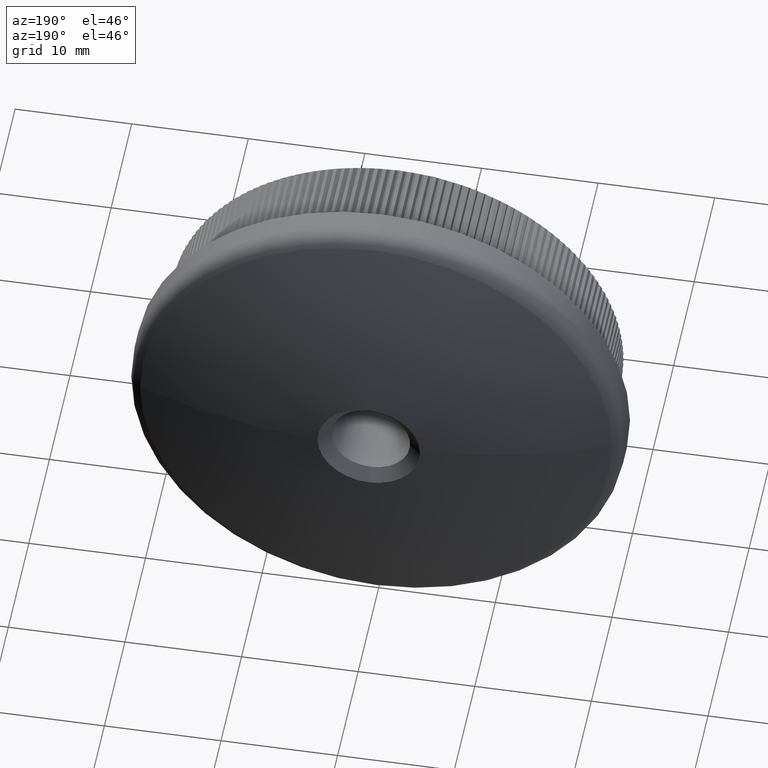
[diagram: clean part render]
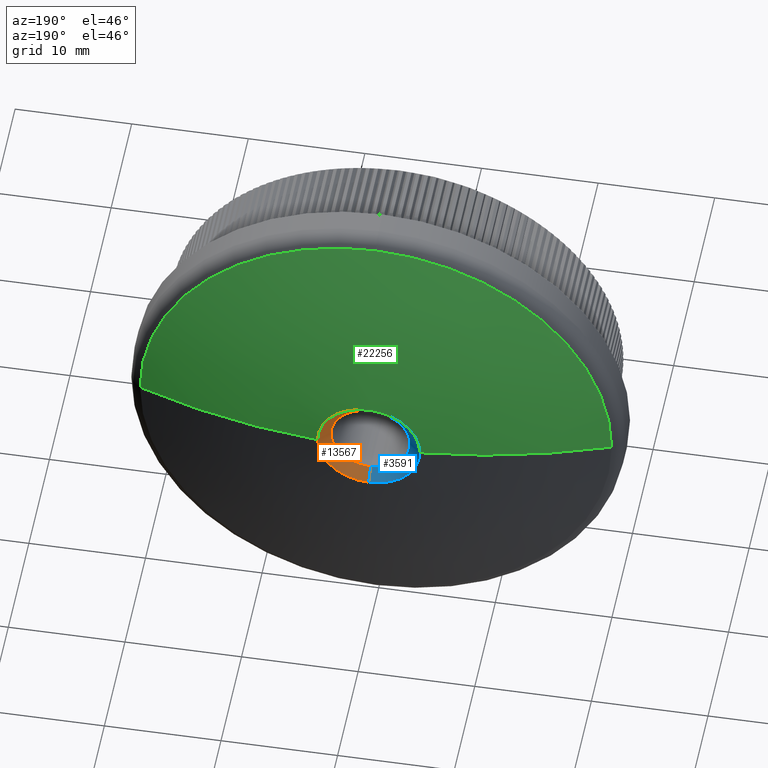
[diagram: same view with three faces highlighted in distinct colors, each labeled with its STEP entity id]
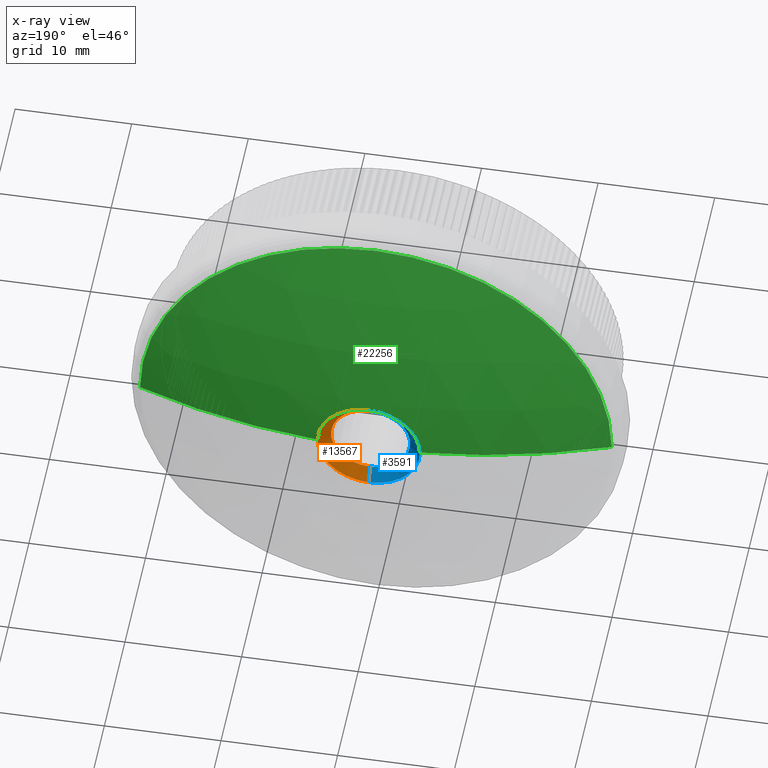
[diagram: x-ray of the same camera — body ghosted, the three highlighted faces saturated]
A machine part, auxiliary view with three faces highlighted in distinct colors.
The next image is the same camera in x-ray (body ghosted, the three faces saturated) — at least one of them is partly hidden behind the body in this view.
Their STEP definitions:

[orange] entity #13567 — the highlighted conical surface has half-angle 48.35 deg.
#794 = CARTESIAN_POINT ( 'NONE',  ( 0.0000000000000000000, 14.83418710009236300, 4.389361584043635700 ) ) ;
#1027 = EDGE_CURVE ( 'NONE', #30300, #27016, #25274, .T. ) ;
#1059 = DIRECTION ( 'NONE',  ( 0.0000000000000000000, 0.0000000000000000000, 1.000000000000000000 ) ) ;
#1078 = ORIENTED_EDGE ( 'NONE', *, *, #11373, .F. ) ;
#1362 = ORIENTED_EDGE ( 'NONE', *, *, #6208, .F. ) ;
#1456 = DIRECTION ( 'NONE',  ( 0.0000000000000000000, 0.0000000000000000000, -1.000000000000000000 ) ) ;
#2611 = ORIENTED_EDGE ( 'NONE', *, *, #7115, .F. ) ;
#3820 = AXIS2_PLACEMENT_3D ( 'NONE', #13050, #10595, #1059 ) ;
#4102 = DIRECTION ( 'NONE',  ( 0.0000000000000000000, 0.0000000000000000000, -1.000000000000000000 ) ) ;
#4657 = ORIENTED_EDGE ( 'NONE', *, *, #1027, .F. ) ;
#4706 = LINE ( 'NONE', #23423, #14696 ) ;
#6208 = EDGE_CURVE ( 'NONE', #9040, #26102, #29219, .T. ) ;
#6854 = EDGE_CURVE ( 'NONE', #30300, #26102, #4706, .T. ) ;
#7115 = EDGE_CURVE ( 'NONE', #15063, #9040, #12084, .T. ) ;
#7617 = CARTESIAN_POINT ( 'NONE',  ( 4.389361584043620600, 14.83418710009236300, 0.0000000000000000000 ) ) ;
#8033 = ORIENTED_EDGE ( 'NONE', *, *, #6854, .T. ) ;
#8251 = DIRECTION ( 'NONE',  ( 0.0000000000000000000, 0.0000000000000000000, 1.000000000000000000 ) ) ;
#8457 = DIRECTION ( 'NONE',  ( -0.0000000000000000000, -1.000000000000000000, -0.0000000000000000000 ) ) ;
#9040 = VERTEX_POINT ( 'NONE', #7617 ) ;
#9084 = EDGE_LOOP ( 'NONE', ( #1078, #4657, #8033, #1362, #2611 ) ) ;
#10595 = DIRECTION ( 'NONE',  ( 0.0000000000000000000, 1.000000000000000000, 0.0000000000000000000 ) ) ;
#11373 = EDGE_CURVE ( 'NONE', #27016, #15063, #25674, .T. ) ;
#12084 = CIRCLE ( 'NONE', #28764, 4.389361584043620600 ) ;
#12991 = DIRECTION ( 'NONE',  ( 0.0000000000000000000, 1.000000000000000000, 0.0000000000000000000 ) ) ;
#13050 = CARTESIAN_POINT ( 'NONE',  ( 0.0000000000000000000, 13.95425291678296300, 0.0000000000000000000 ) ) ;
#13295 = CARTESIAN_POINT ( 'NONE',  ( 0.0000000000000000000, 14.83418710009236300, 0.0000000000000000000 ) ) ;
#13567 = ADVANCED_FACE ( 'NONE', ( #20353 ), #23373, .F. ) ;
#14696 = VECTOR ( 'NONE', #30533, 1000.000000000000100 ) ;
#15063 = VERTEX_POINT ( 'NONE', #24517 ) ;
#15661 = CARTESIAN_POINT ( 'NONE',  ( 4.163799117100995600E-016, 13.95425291678296300, -3.399999999999995500 ) ) ;
#15905 = AXIS2_PLACEMENT_3D ( 'NONE', #17439, #12991, #8251 ) ;
#17439 = CARTESIAN_POINT ( 'NONE',  ( 0.0000000000000000000, 13.95425291678296300, 0.0000000000000000000 ) ) ;
#19341 = VECTOR ( 'NONE', #22883, 1000.000000000000100 ) ;
#20217 = CARTESIAN_POINT ( 'NONE',  ( 0.0000000000000000000, 14.83418710009236300, 0.0000000000000000000 ) ) ;
#20353 = FACE_OUTER_BOUND ( 'NONE', #9084, .T. ) ;
#20973 = AXIS2_PLACEMENT_3D ( 'NONE', #20217, #24809, #1456 ) ;
#21195 = CARTESIAN_POINT ( 'NONE',  ( 4.163799117100995600E-016, 13.95425291678296300, 3.399999999999995500 ) ) ;
#21952 = CARTESIAN_POINT ( 'NONE',  ( 0.0000000000000000000, 13.95425291678296300, -3.399999999999995500 ) ) ;
#22883 = DIRECTION ( 'NONE',  ( 9.150819930463708100E-017, 0.6645754650830519900, -0.7472211528119671000 ) ) ;
#23373 = CONICAL_SURFACE ( 'NONE', #15905, 3.399999999999995500, 0.8438708040748624800 ) ;
#23423 = CARTESIAN_POINT ( 'NONE',  ( 0.0000000000000000000, 13.95425291678296300, 3.399999999999995500 ) ) ;
#24517 = CARTESIAN_POINT ( 'NONE',  ( 5.375417614199396000E-016, 14.83418710009236300, -4.389361584043635700 ) ) ;
#24809 = DIRECTION ( 'NONE',  ( -0.0000000000000000000, -1.000000000000000000, -0.0000000000000000000 ) ) ;
#25274 = CIRCLE ( 'NONE', #3820, 3.399999999999995500 ) ;
#25674 = LINE ( 'NONE', #15661, #19341 ) ;
#26102 = VERTEX_POINT ( 'NONE', #794 ) ;
#27016 = VERTEX_POINT ( 'NONE', #21952 ) ;
#28764 = AXIS2_PLACEMENT_3D ( 'NONE', #13295, #8457, #4102 ) ;
#29219 = CIRCLE ( 'NONE', #20973, 4.389361584043620600 ) ;
#30300 = VERTEX_POINT ( 'NONE', #21195 ) ;
#30533 = DIRECTION ( 'NONE',  ( 0.0000000000000000000, 0.6645754650830519900, 0.7472211528119671000 ) ) ;

[blue] entity #3591 — the highlighted conical surface has half-angle 48.35 deg.
#794 = CARTESIAN_POINT ( 'NONE',  ( 0.0000000000000000000, 14.83418710009236300, 4.389361584043635700 ) ) ;
#1680 = ORIENTED_EDGE ( 'NONE', *, *, #23419, .F. ) ;
#3591 = ADVANCED_FACE ( 'NONE', ( #7002 ), #26296, .F. ) ;
#4706 = LINE ( 'NONE', #23423, #14696 ) ;
#4857 = AXIS2_PLACEMENT_3D ( 'NONE', #30713, #16694, #21402 ) ;
#5191 = DIRECTION ( 'NONE',  ( 0.0000000000000000000, 0.0000000000000000000, -1.000000000000000000 ) ) ;
#6130 = AXIS2_PLACEMENT_3D ( 'NONE', #7834, #12389, #19656 ) ;
#6854 = EDGE_CURVE ( 'NONE', #30300, #26102, #4706, .T. ) ;
#7002 = FACE_OUTER_BOUND ( 'NONE', #19502, .T. ) ;
#7834 = CARTESIAN_POINT ( 'NONE',  ( 0.0000000000000000000, 13.95425291678296300, 0.0000000000000000000 ) ) ;
#8711 = CARTESIAN_POINT ( 'NONE',  ( 0.0000000000000000000, 14.83418710009236300, 0.0000000000000000000 ) ) ;
#9753 = EDGE_CURVE ( 'NONE', #26102, #15568, #28712, .T. ) ;
#10065 = DIRECTION ( 'NONE',  ( -0.0000000000000000000, -1.000000000000000000, -0.0000000000000000000 ) ) ;
#10140 = ORIENTED_EDGE ( 'NONE', *, *, #6854, .F. ) ;
#10250 = ORIENTED_EDGE ( 'NONE', *, *, #11373, .T. ) ;
#10756 = CARTESIAN_POINT ( 'NONE',  ( -4.389361584043620600, 14.83418710009236300, 1.506971330829536000E-015 ) ) ;
#11373 = EDGE_CURVE ( 'NONE', #27016, #15063, #25674, .T. ) ;
#11689 = AXIS2_PLACEMENT_3D ( 'NONE', #15001, #10065, #5191 ) ;
#12389 = DIRECTION ( 'NONE',  ( 0.0000000000000000000, 1.000000000000000000, 0.0000000000000000000 ) ) ;
#13093 = CIRCLE ( 'NONE', #11689, 4.389361584043620600 ) ;
#13909 = CIRCLE ( 'NONE', #6130, 3.399999999999995500 ) ;
#14696 = VECTOR ( 'NONE', #30533, 1000.000000000000100 ) ;
#15001 = CARTESIAN_POINT ( 'NONE',  ( 0.0000000000000000000, 14.83418710009236300, 0.0000000000000000000 ) ) ;
#15063 = VERTEX_POINT ( 'NONE', #24517 ) ;
#15568 = VERTEX_POINT ( 'NONE', #10756 ) ;
#15661 = CARTESIAN_POINT ( 'NONE',  ( 4.163799117100995600E-016, 13.95425291678296300, -3.399999999999995500 ) ) ;
#15724 = DIRECTION ( 'NONE',  ( -0.0000000000000000000, -1.000000000000000000, -0.0000000000000000000 ) ) ;
#16694 = DIRECTION ( 'NONE',  ( 0.0000000000000000000, 1.000000000000000000, 0.0000000000000000000 ) ) ;
#18920 = ORIENTED_EDGE ( 'NONE', *, *, #9753, .F. ) ;
#19341 = VECTOR ( 'NONE', #22883, 1000.000000000000100 ) ;
#19502 = EDGE_LOOP ( 'NONE', ( #29125, #10250, #1680, #18920, #10140 ) ) ;
#19656 = DIRECTION ( 'NONE',  ( 0.0000000000000000000, 0.0000000000000000000, 1.000000000000000000 ) ) ;
#21195 = CARTESIAN_POINT ( 'NONE',  ( 4.163799117100995600E-016, 13.95425291678296300, 3.399999999999995500 ) ) ;
#21402 = DIRECTION ( 'NONE',  ( 0.0000000000000000000, 0.0000000000000000000, 1.000000000000000000 ) ) ;
#21887 = EDGE_CURVE ( 'NONE', #27016, #30300, #13909, .T. ) ;
#21952 = CARTESIAN_POINT ( 'NONE',  ( 0.0000000000000000000, 13.95425291678296300, -3.399999999999995500 ) ) ;
#22730 = DIRECTION ( 'NONE',  ( 0.0000000000000000000, 0.0000000000000000000, -1.000000000000000000 ) ) ;
#22883 = DIRECTION ( 'NONE',  ( 9.150819930463708100E-017, 0.6645754650830519900, -0.7472211528119671000 ) ) ;
#23419 = EDGE_CURVE ( 'NONE', #15568, #15063, #13093, .T. ) ;
#23423 = CARTESIAN_POINT ( 'NONE',  ( 0.0000000000000000000, 13.95425291678296300, 3.399999999999995500 ) ) ;
#24517 = CARTESIAN_POINT ( 'NONE',  ( 5.375417614199396000E-016, 14.83418710009236300, -4.389361584043635700 ) ) ;
#25674 = LINE ( 'NONE', #15661, #19341 ) ;
#25813 = AXIS2_PLACEMENT_3D ( 'NONE', #8711, #15724, #22730 ) ;
#26102 = VERTEX_POINT ( 'NONE', #794 ) ;
#26296 = CONICAL_SURFACE ( 'NONE', #4857, 3.399999999999995500, 0.8438708040748624800 ) ;
#27016 = VERTEX_POINT ( 'NONE', #21952 ) ;
#28712 = CIRCLE ( 'NONE', #25813, 4.389361584043620600 ) ;
#29125 = ORIENTED_EDGE ( 'NONE', *, *, #21887, .F. ) ;
#30300 = VERTEX_POINT ( 'NONE', #21195 ) ;
#30533 = DIRECTION ( 'NONE',  ( 0.0000000000000000000, 0.6645754650830519900, 0.7472211528119671000 ) ) ;
#30713 = CARTESIAN_POINT ( 'NONE',  ( 0.0000000000000000000, 13.95425291678296300, 0.0000000000000000000 ) ) ;

[green] entity #22256 — the highlighted spherical surface has radius 58.18 mm.
#794 = CARTESIAN_POINT ( 'NONE',  ( 0.0000000000000000000, 14.83418710009236300, 4.389361584043635700 ) ) ;
#1456 = DIRECTION ( 'NONE',  ( 0.0000000000000000000, 0.0000000000000000000, -1.000000000000000000 ) ) ;
#1473 = CARTESIAN_POINT ( 'NONE',  ( 0.0000000000000000000, -43.18000000000007100, 0.0000000000000000000 ) ) ;
#2700 = VERTEX_POINT ( 'NONE', #16080 ) ;
#4579 = DIRECTION ( 'NONE',  ( 0.0000000000000000000, 1.000000000000000000, 0.0000000000000000000 ) ) ;
#5389 = SPHERICAL_SURFACE ( 'NONE', #25218, 58.18000000000007100 ) ;
#6058 = CIRCLE ( 'NONE', #16993, 58.18000000000007100 ) ;
#6208 = EDGE_CURVE ( 'NONE', #9040, #26102, #29219, .T. ) ;
#6254 = DIRECTION ( 'NONE',  ( 0.0000000000000000000, 0.0000000000000000000, -1.000000000000000000 ) ) ;
#6417 = ORIENTED_EDGE ( 'NONE', *, *, #25298, .T. ) ;
#6671 = DIRECTION ( 'NONE',  ( 0.0000000000000000000, 0.0000000000000000000, -1.000000000000000000 ) ) ;
#7617 = CARTESIAN_POINT ( 'NONE',  ( 4.389361584043620600, 14.83418710009236300, 0.0000000000000000000 ) ) ;
#8277 = ORIENTED_EDGE ( 'NONE', *, *, #9753, .T. ) ;
#8612 = CIRCLE ( 'NONE', #10735, 20.22134791813691000 ) ;
#8632 = DIRECTION ( 'NONE',  ( -1.000000000000000000, 0.0000000000000000000, 0.0000000000000000000 ) ) ;
#8711 = CARTESIAN_POINT ( 'NONE',  ( 0.0000000000000000000, 14.83418710009236300, 0.0000000000000000000 ) ) ;
#8810 = DIRECTION ( 'NONE',  ( 1.000000000000000000, 0.0000000000000000000, -1.224646799147353500E-016 ) ) ;
#9040 = VERTEX_POINT ( 'NONE', #7617 ) ;
#9699 = CARTESIAN_POINT ( 'NONE',  ( 0.0000000000000000000, -43.18000000000007100, 0.0000000000000000000 ) ) ;
#9753 = EDGE_CURVE ( 'NONE', #26102, #15568, #28712, .T. ) ;
#9774 = VERTEX_POINT ( 'NONE', #27485 ) ;
#10096 = ORIENTED_EDGE ( 'NONE', *, *, #19277, .F. ) ;
#10219 = EDGE_LOOP ( 'NONE', ( #11113, #8277, #11037, #6417, #21736, #10096 ) ) ;
#10735 = AXIS2_PLACEMENT_3D ( 'NONE', #22559, #22451, #12755 ) ;
#10756 = CARTESIAN_POINT ( 'NONE',  ( -4.389361584043620600, 14.83418710009236300, 1.506971330829536000E-015 ) ) ;
#11037 = ORIENTED_EDGE ( 'NONE', *, *, #29563, .T. ) ;
#11113 = ORIENTED_EDGE ( 'NONE', *, *, #6208, .T. ) ;
#11711 = CARTESIAN_POINT ( 'NONE',  ( 0.0000000000000000000, 11.37281375303810000, 0.0000000000000000000 ) ) ;
#11923 = CIRCLE ( 'NONE', #24087, 20.22134791813691000 ) ;
#12755 = DIRECTION ( 'NONE',  ( 0.0000000000000000000, 0.0000000000000000000, -1.000000000000000000 ) ) ;
#14273 = FACE_OUTER_BOUND ( 'NONE', #10219, .T. ) ;
#15568 = VERTEX_POINT ( 'NONE', #10756 ) ;
#15724 = DIRECTION ( 'NONE',  ( -0.0000000000000000000, -1.000000000000000000, -0.0000000000000000000 ) ) ;
#16080 = CARTESIAN_POINT ( 'NONE',  ( -20.22134791813689200, 11.37281375303809700, 2.476400900239134100E-015 ) ) ;
#16132 = CARTESIAN_POINT ( 'NONE',  ( 0.0000000000000000000, -43.18000000000007100, 0.0000000000000000000 ) ) ;
#16816 = DIRECTION ( 'NONE',  ( 0.0000000000000000000, 0.0000000000000000000, 1.000000000000000000 ) ) ;
#16993 = AXIS2_PLACEMENT_3D ( 'NONE', #1473, #6254, #8632 ) ;
#19277 = EDGE_CURVE ( 'NONE', #9040, #9774, #6058, .T. ) ;
#20217 = CARTESIAN_POINT ( 'NONE',  ( 0.0000000000000000000, 14.83418710009236300, 0.0000000000000000000 ) ) ;
#20973 = AXIS2_PLACEMENT_3D ( 'NONE', #20217, #24809, #1456 ) ;
#21736 = ORIENTED_EDGE ( 'NONE', *, *, #25608, .T. ) ;
#22256 = ADVANCED_FACE ( 'NONE', ( #14273 ), #5389, .T. ) ;
#22451 = DIRECTION ( 'NONE',  ( 0.0000000000000000000, 1.000000000000000000, 0.0000000000000000000 ) ) ;
#22559 = CARTESIAN_POINT ( 'NONE',  ( 0.0000000000000000000, 11.37281375303810000, 0.0000000000000000000 ) ) ;
#22730 = DIRECTION ( 'NONE',  ( 0.0000000000000000000, 0.0000000000000000000, -1.000000000000000000 ) ) ;
#24087 = AXIS2_PLACEMENT_3D ( 'NONE', #11711, #4579, #6671 ) ;
#24115 = CIRCLE ( 'NONE', #26114, 58.18000000000007100 ) ;
#24809 = DIRECTION ( 'NONE',  ( -0.0000000000000000000, -1.000000000000000000, -0.0000000000000000000 ) ) ;
#25218 = AXIS2_PLACEMENT_3D ( 'NONE', #9699, #16816, #28791 ) ;
#25298 = EDGE_CURVE ( 'NONE', #2700, #25381, #8612, .T. ) ;
#25381 = VERTEX_POINT ( 'NONE', #27002 ) ;
#25608 = EDGE_CURVE ( 'NONE', #25381, #9774, #11923, .T. ) ;
#25813 = AXIS2_PLACEMENT_3D ( 'NONE', #8711, #15724, #22730 ) ;
#26102 = VERTEX_POINT ( 'NONE', #794 ) ;
#26114 = AXIS2_PLACEMENT_3D ( 'NONE', #16132, #28112, #8810 ) ;
#27002 = CARTESIAN_POINT ( 'NONE',  ( 2.536326057215763400E-015, 11.37281375303810000, 20.22134791813691000 ) ) ;
#27485 = CARTESIAN_POINT ( 'NONE',  ( 20.22134791813689200, 11.37281375303809700, 0.0000000000000000000 ) ) ;
#28112 = DIRECTION ( 'NONE',  ( 1.224646799147353200E-016, -0.0000000000000000000, 1.000000000000000000 ) ) ;
#28712 = CIRCLE ( 'NONE', #25813, 4.389361584043620600 ) ;
#28791 = DIRECTION ( 'NONE',  ( 1.000000000000000000, 0.0000000000000000000, 0.0000000000000000000 ) ) ;
#29219 = CIRCLE ( 'NONE', #20973, 4.389361584043620600 ) ;
#29563 = EDGE_CURVE ( 'NONE', #15568, #2700, #24115, .T. ) ;